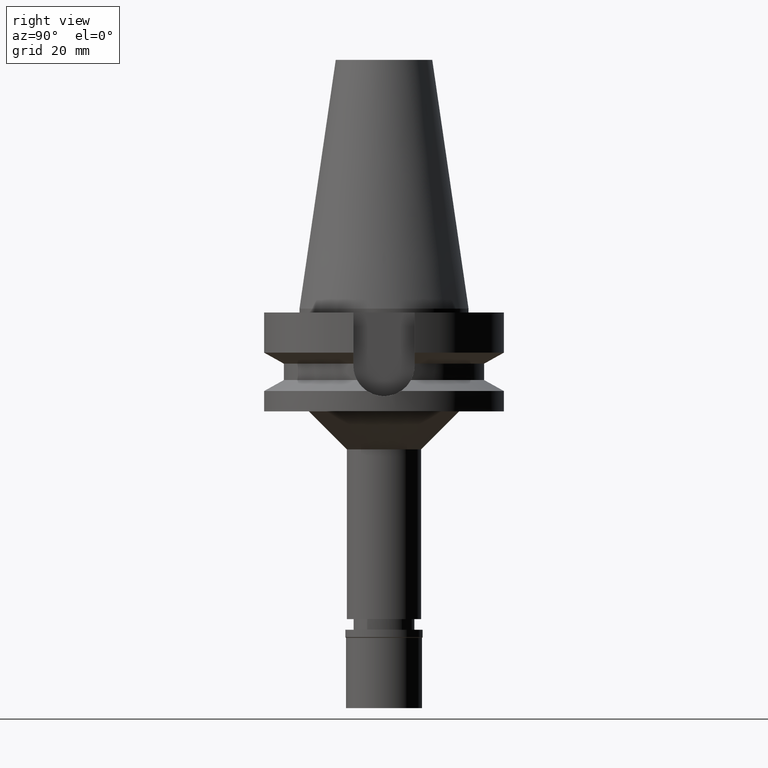
[diagram: clean part render]
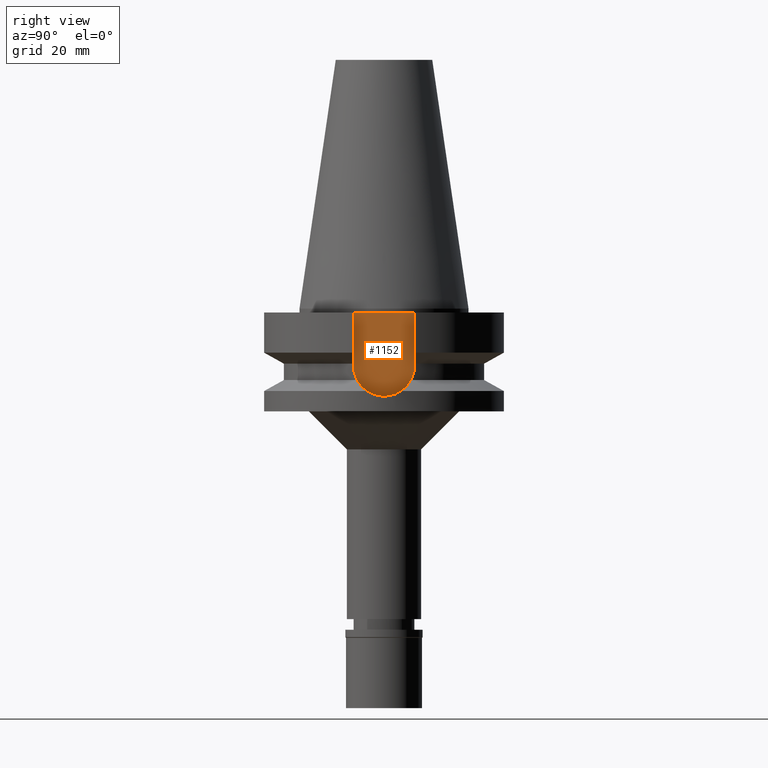
[diagram: same view with one face highlighted and labeled with its STEP entity id]
A machine part, right view. The second image highlights one B-rep face of the part: STEP entity #1152.
In plain terms, the highlighted planar face has unit normal (1, 0, 0).
Its self-contained STEP definition (entity closure, byte-faithful):
#17 = LINE ( 'NONE', #993, #742 ) ;
#41 = EDGE_CURVE ( 'NONE', #1127, #1269, #2400, .T. ) ;
#214 = ORIENTED_EDGE ( 'NONE', *, *, #2489, .F. ) ;
#280 = DIRECTION ( 'NONE',  ( -1.000000000000000000, 0.0000000000000000000, 0.0000000000000000000 ) ) ;
#306 = EDGE_CURVE ( 'NONE', #1075, #2628, #2392, .T. ) ;
#376 = DIRECTION ( 'NONE',  ( 0.0000000000000000000, 0.0000000000000000000, 1.000000000000000000 ) ) ;
#462 = CARTESIAN_POINT ( 'NONE',  ( 22.50000000000000000, -8.050000000000000711, -14.94999999999999929 ) ) ;
#490 = ORIENTED_EDGE ( 'NONE', *, *, #41, .F. ) ;
#534 = DIRECTION ( 'NONE',  ( 0.0000000000000000000, 1.000000000000000000, 0.0000000000000000000 ) ) ;
#603 = CARTESIAN_POINT ( 'NONE',  ( 22.50000000000000000, 8.050000000000000711, -1.000000000000000000 ) ) ;
#689 = DIRECTION ( 'NONE',  ( 1.000000000000000000, 0.0000000000000000000, 0.0000000000000000000 ) ) ;
#716 = DIRECTION ( 'NONE',  ( 0.0000000000000000000, 1.000000000000000000, 0.0000000000000000000 ) ) ;
#742 = VECTOR ( 'NONE', #2638, 1000.000000000000000 ) ;
#861 = EDGE_LOOP ( 'NONE', ( #2199, #490, #214, #2567 ) ) ;
#932 = AXIS2_PLACEMENT_3D ( 'NONE', #2379, #689, #716 ) ;
#940 = FACE_OUTER_BOUND ( 'NONE', #861, .T. ) ;
#993 = CARTESIAN_POINT ( 'NONE',  ( 22.50000000000000000, 8.050000000000000711, -1.000000000000000000 ) ) ;
#1075 = VERTEX_POINT ( 'NONE', #603 ) ;
#1127 = VERTEX_POINT ( 'NONE', #2600 ) ;
#1152 = ADVANCED_FACE ( 'NONE', ( #940 ), #3118, .T. ) ;
#1242 = CARTESIAN_POINT ( 'NONE',  ( 22.50000000000000000, 8.050000000000000711, -1.000000000000000000 ) ) ;
#1269 = VERTEX_POINT ( 'NONE', #462 ) ;
#1294 = VECTOR ( 'NONE', #376, 1000.000000000000000 ) ;
#1314 = CARTESIAN_POINT ( 'NONE',  ( 22.50000000000000000, -8.050000000000000711, -1.000000000000000000 ) ) ;
#1349 = CARTESIAN_POINT ( 'NONE',  ( 22.50000000000000000, -8.050000000000000711, -14.94999999999999929 ) ) ;
#1468 = DIRECTION ( 'NONE',  ( 0.0000000000000000000, -1.000000000000000000, 0.0000000000000000000 ) ) ;
#1908 = VECTOR ( 'NONE', #1468, 1000.000000000000000 ) ;
#2199 = ORIENTED_EDGE ( 'NONE', *, *, #2727, .F. ) ;
#2379 = CARTESIAN_POINT ( 'NONE',  ( 22.50000000000000000, 0.0000000000000000000, 0.0000000000000000000 ) ) ;
#2392 = LINE ( 'NONE', #1242, #1908 ) ;
#2400 = CIRCLE ( 'NONE', #2548, 8.050000000000000711 ) ;
#2449 = CARTESIAN_POINT ( 'NONE',  ( 22.50000000000000000, 0.0000000000000000000, -14.94999999999999929 ) ) ;
#2489 = EDGE_CURVE ( 'NONE', #1075, #1127, #17, .T. ) ;
#2548 = AXIS2_PLACEMENT_3D ( 'NONE', #2449, #280, #534 ) ;
#2567 = ORIENTED_EDGE ( 'NONE', *, *, #306, .T. ) ;
#2600 = CARTESIAN_POINT ( 'NONE',  ( 22.50000000000000000, 8.050000000000000711, -14.94999999999999929 ) ) ;
#2628 = VERTEX_POINT ( 'NONE', #1314 ) ;
#2638 = DIRECTION ( 'NONE',  ( 0.0000000000000000000, 0.0000000000000000000, -1.000000000000000000 ) ) ;
#2727 = EDGE_CURVE ( 'NONE', #1269, #2628, #2784, .T. ) ;
#2784 = LINE ( 'NONE', #1349, #1294 ) ;
#3118 = PLANE ( 'NONE',  #932 ) ;